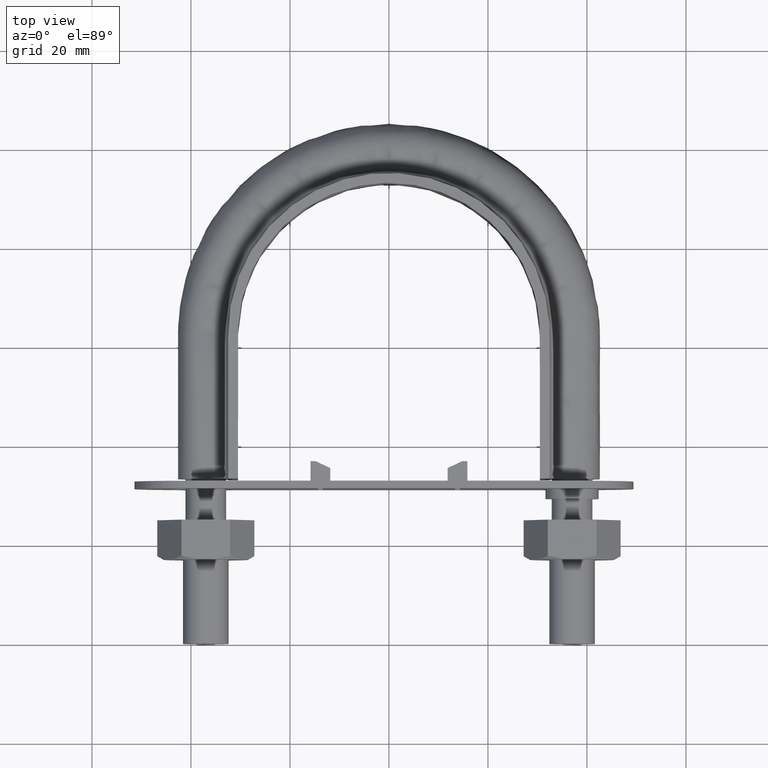
[diagram: clean part render]
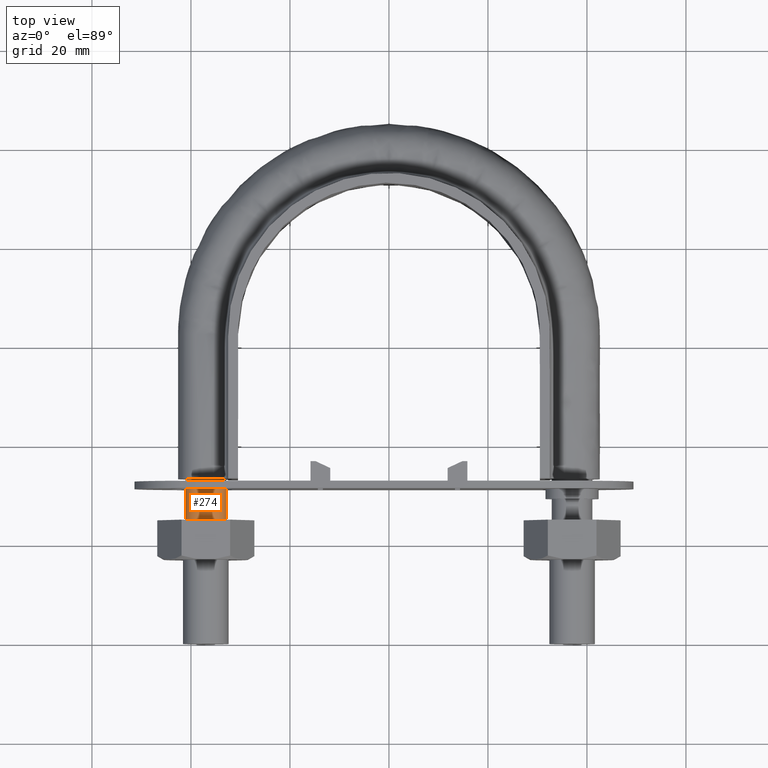
[diagram: same view with one face highlighted and labeled with its STEP entity id]
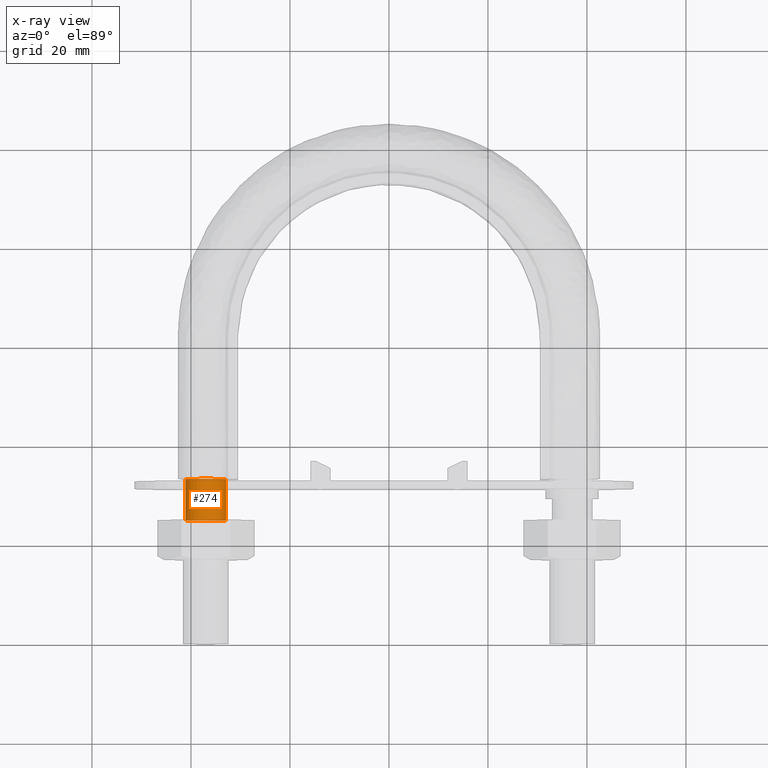
[diagram: x-ray of the same camera — body ghosted, the highlighted face saturated]
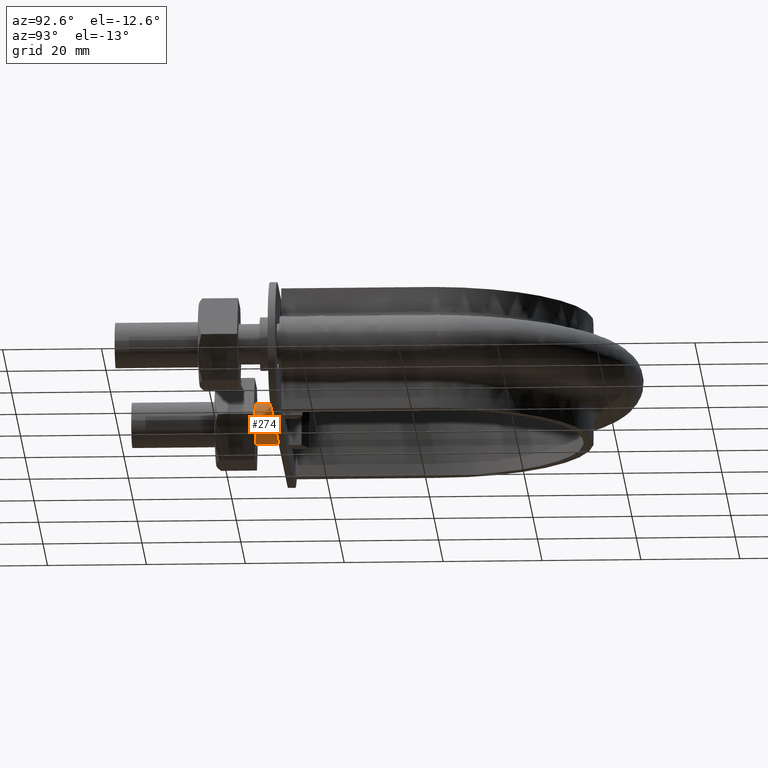
[diagram: same view with one face highlighted and labeled with its STEP entity id]
A machine part, top view. The second image highlights one B-rep face of the part: STEP entity #274.
The next image is the same camera in x-ray: the body ghosted, the highlighted face saturated — about 0% of this face is hidden behind the body in this view.
A second angle (auxiliary view) of the same face is appended — the face is thin or edge-on in the first view.
In plain terms, the highlighted cylindrical surface (bore or boss wall) has radius 4.1 mm, axis along (0, 1, -0).
Its self-contained STEP definition (entity closure, byte-faithful):
#274 = ADVANCED_FACE( '', ( #396, #397 ), #398, .T. );
#396 = FACE_OUTER_BOUND( '', #1325, .T. );
#397 = FACE_OUTER_BOUND( '', #1326, .T. );
#398 = CYLINDRICAL_SURFACE( '', #1327, 4.10000000000000 );
#1325 = EDGE_LOOP( '', ( #1768, #1769, #1770, #1771, #1772, #1773, #1774 ) );
#1326 = EDGE_LOOP( '', ( #1775 ) );
#1327 = AXIS2_PLACEMENT_3D( '', #1776, #1777, #1778 );
#1768 = ORIENTED_EDGE( '', *, *, #2531, .T. );
#1769 = ORIENTED_EDGE( '', *, *, #2532, .T. );
#1770 = ORIENTED_EDGE( '', *, *, #2533, .T. );
#1771 = ORIENTED_EDGE( '', *, *, #2534, .T. );
#1772 = ORIENTED_EDGE( '', *, *, #2535, .T. );
#1773 = ORIENTED_EDGE( '', *, *, #2536, .T. );
#1774 = ORIENTED_EDGE( '', *, *, #2537, .T. );
#1775 = ORIENTED_EDGE( '', *, *, #2538, .T. );
#1776 = CARTESIAN_POINT( '', ( -37.0000000000000, 33.3000000000000, -2.07570776972893E-015 ) );
#1777 = DIRECTION( '', ( 2.44921270764475E-016, 1.00000000000000, -6.12303176911189E-017 ) );
#1778 = DIRECTION( '', ( 1.00000000000000, -2.44921270764475E-016, 0.000000000000000 ) );
#2531 = EDGE_CURVE( '', #2775, #2776, #2777, .T. );
#2532 = EDGE_CURVE( '', #2776, #2778, #2779, .T. );
#2533 = EDGE_CURVE( '', #2778, #2780, #2781, .T. );
#2534 = EDGE_CURVE( '', #2780, #2782, #2783, .T. );
#2535 = EDGE_CURVE( '', #2782, #2784, #2785, .T. );
#2536 = EDGE_CURVE( '', #2784, #2786, #2787, .T. );
#2537 = EDGE_CURVE( '', #2786, #2775, #2788, .T. );
#2538 = EDGE_CURVE( '', #2789, #2789, #2790, .T. );
#2775 = VERTEX_POINT( '', #3368 );
#2776 = VERTEX_POINT( '', #3369 );
#2777 = CIRCLE( '', #3370, 4.10000000000000 );
#2778 = VERTEX_POINT( '', #3371 );
#2779 = CIRCLE( '', #3372, 4.10000000000000 );
#2780 = VERTEX_POINT( '', #3373 );
#2781 = CIRCLE( '', #3374, 4.10000000000000 );
#2782 = VERTEX_POINT( '', #3375 );
#2783 = CIRCLE( '', #3376, 4.10000000000000 );
#2784 = VERTEX_POINT( '', #3377 );
#2785 = CIRCLE( '', #3378, 4.10000000000000 );
#2786 = VERTEX_POINT( '', #3379 );
#2787 = CIRCLE( '', #3380, 4.10000000000000 );
#2788 = CIRCLE( '', #3381, 4.10000000000000 );
#2789 = VERTEX_POINT( '', #3382 );
#2790 = CIRCLE( '', #3383, 4.10000000000000 );
#3368 = CARTESIAN_POINT( '', ( -32.9000000000000, 33.3000000000001, 5.38378651292854E-014 ) );
#3369 = CARTESIAN_POINT( '', ( -34.4436918123953, 33.3000000000000, 3.20550907813181 ) );
#3370 = AXIS2_PLACEMENT_3D( '', #4006, #4007, #4008 );
#3371 = CARTESIAN_POINT( '', ( -37.9123358292486, 33.3000000000000, 3.99720443993915 ) );
#3372 = AXIS2_PLACEMENT_3D( '', #4009, #4010, #4011 );
#3373 = CARTESIAN_POINT( '', ( -40.6939723583999, 33.3000000000000, 1.77892333038193 ) );
#3374 = AXIS2_PLACEMENT_3D( '', #4012, #4013, #4014 );
#3375 = CARTESIAN_POINT( '', ( -40.6939723583999, 33.3000000000000, -1.77892333038198 ) );
#3376 = AXIS2_PLACEMENT_3D( '', #4015, #4016, #4017 );
#3377 = CARTESIAN_POINT( '', ( -37.9123358292210, 33.3000000000000, -3.99720443994544 ) );
#3378 = AXIS2_PLACEMENT_3D( '', #4018, #4019, #4020 );
#3379 = CARTESIAN_POINT( '', ( -34.4436918123793, 33.3000000000000, -3.20550907811902 ) );
#3380 = AXIS2_PLACEMENT_3D( '', #4021, #4022, #4023 );
#3381 = AXIS2_PLACEMENT_3D( '', #4024, #4025, #4026 );
#3382 = CARTESIAN_POINT( '', ( -32.9000000000000, 25.0000000000000, -1.56749613289264E-015 ) );
#3383 = AXIS2_PLACEMENT_3D( '', #4027, #4028, #4029 );
#4006 = CARTESIAN_POINT( '', ( -37.0000000000000, 33.3000000000000, -2.07570776972893E-015 ) );
#4007 = DIRECTION( '', ( -2.44921270764475E-016, -1.00000000000000, 6.12303176911189E-017 ) );
#4008 = DIRECTION( '', ( 1.00000000000000, -2.44921270764475E-016, 0.000000000000000 ) );
#4009 = CARTESIAN_POINT( '', ( -37.0000000000000, 33.3000000000000, -2.07570776972893E-015 ) );
#4010 = DIRECTION( '', ( -2.44921270764475E-016, -1.00000000000000, 6.12303176911189E-017 ) );
#4011 = DIRECTION( '', ( 1.00000000000000, -2.44921270764475E-016, 0.000000000000000 ) );
#4012 = CARTESIAN_POINT( '', ( -37.0000000000000, 33.3000000000000, -2.07570776972893E-015 ) );
#4013 = DIRECTION( '', ( -2.44921270764475E-016, -1.00000000000000, 6.12303176911189E-017 ) );
#4014 = DIRECTION( '', ( 1.00000000000000, -2.44921270764475E-016, 0.000000000000000 ) );
#4015 = CARTESIAN_POINT( '', ( -37.0000000000000, 33.3000000000000, -2.07570776972893E-015 ) );
#4016 = DIRECTION( '', ( -2.44921270764475E-016, -1.00000000000000, 6.12303176911189E-017 ) );
#4017 = DIRECTION( '', ( 1.00000000000000, -2.44921270764475E-016, 0.000000000000000 ) );
#4018 = CARTESIAN_POINT( '', ( -37.0000000000000, 33.3000000000000, -2.07570776972893E-015 ) );
#4019 = DIRECTION( '', ( -2.44921270764475E-016, -1.00000000000000, 6.12303176911189E-017 ) );
#4020 = DIRECTION( '', ( 1.00000000000000, -2.44921270764475E-016, 0.000000000000000 ) );
#4021 = CARTESIAN_POINT( '', ( -37.0000000000000, 33.3000000000000, -2.07570776972893E-015 ) );
#4022 = DIRECTION( '', ( -2.44921270764475E-016, -1.00000000000000, 6.12303176911189E-017 ) );
#4023 = DIRECTION( '', ( 1.00000000000000, -2.44921270764475E-016, 0.000000000000000 ) );
#4024 = CARTESIAN_POINT( '', ( -37.0000000000000, 33.3000000000000, -2.07570776972893E-015 ) );
#4025 = DIRECTION( '', ( -2.44921270764475E-016, -1.00000000000000, 6.12303176911189E-017 ) );
#4026 = DIRECTION( '', ( 1.00000000000000, -2.44921270764475E-016, 0.000000000000000 ) );
#4027 = CARTESIAN_POINT( '', ( -37.0000000000000, 25.0000000000000, -1.56749613289264E-015 ) );
#4028 = DIRECTION( '', ( 2.44921270764475E-016, 1.00000000000000, -6.12303176911189E-017 ) );
#4029 = DIRECTION( '', ( 1.00000000000000, -2.44921270764475E-016, 0.000000000000000 ) );